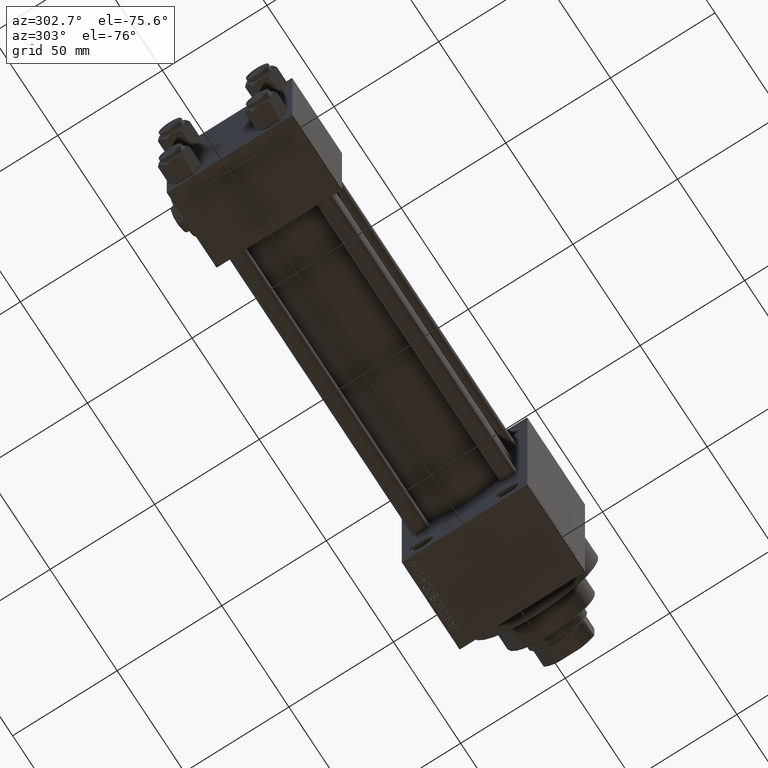
[diagram: clean part render]
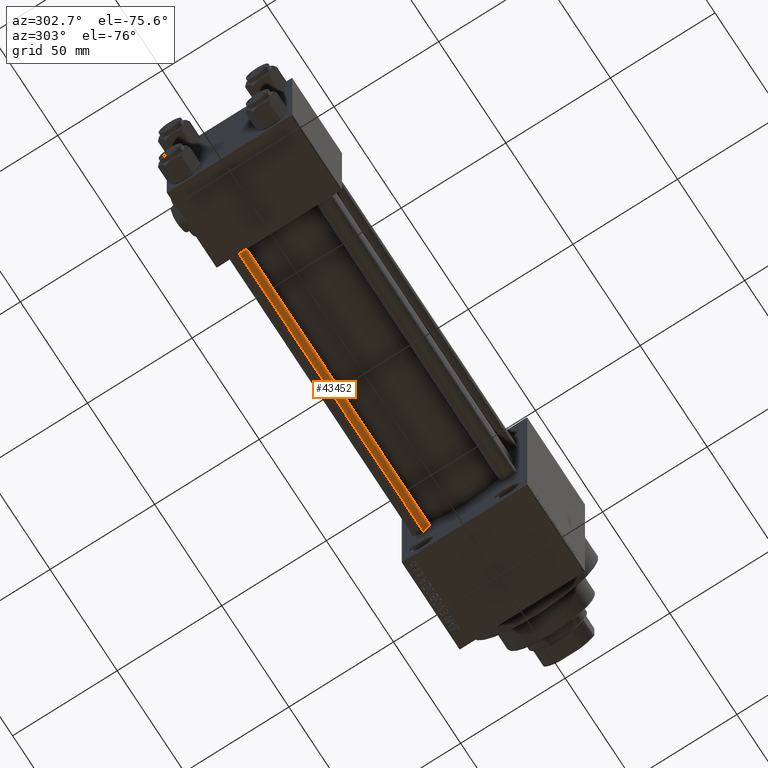
[diagram: same view with one face highlighted and labeled with its STEP entity id]
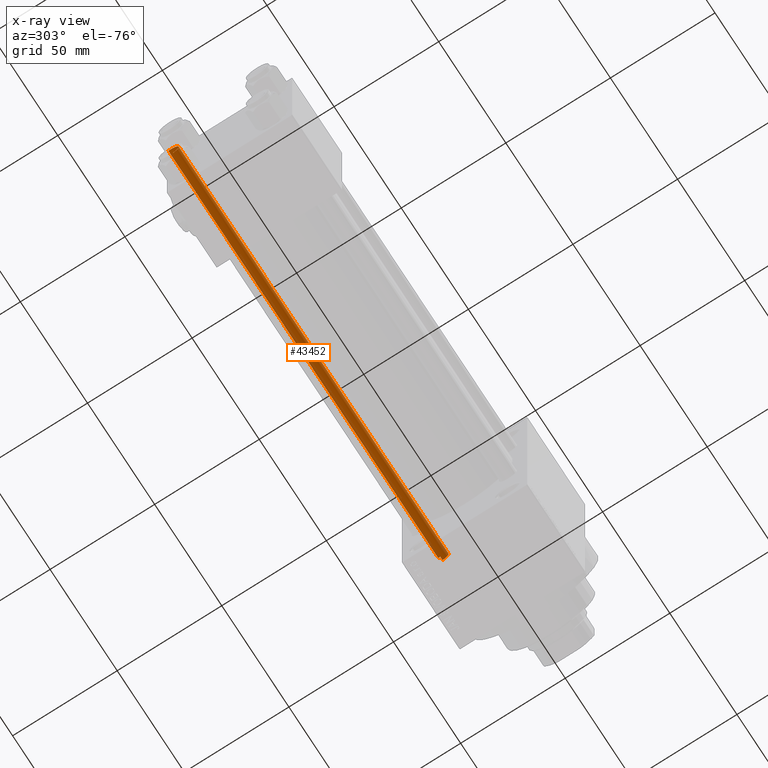
[diagram: x-ray of the same camera — body ghosted, the highlighted face saturated]
A machine part, auxiliary view. The second image highlights one B-rep face of the part: STEP entity #43452.
The next image is the same camera in x-ray: the body ghosted, the highlighted face saturated — about 2% of this face is hidden behind the body in this view.
In plain terms, the highlighted cylindrical surface (edge-blend (fillet) strip) has radius 4 mm, axis along (1, -0, 0).
Its self-contained STEP definition (entity closure, byte-faithful):
#5035 = EDGE_CURVE ( 'NONE', #46889, #38912, #5921, .T. ) ;
#5472 = CARTESIAN_POINT ( 'NONE',  ( -4.000000000000000000, 0.000000000000000000, 0.5000000000000004441 ) ) ;
#5921 = LINE ( 'NONE', #17620, #16634 ) ;
#7106 = VERTEX_POINT ( 'NONE', #5472 ) ;
#7474 = ORIENTED_EDGE ( 'NONE', *, *, #36543, .T. ) ;
#9608 = VERTEX_POINT ( 'NONE', #21591 ) ;
#10151 = CIRCLE ( 'NONE', #32423, 4.000000000000000000 ) ;
#10990 = CARTESIAN_POINT ( 'NONE',  ( 0.000000000000000000, 0.000000000000000000, 0.5000000000000004441 ) ) ;
#11949 = LINE ( 'NONE', #26161, #46271 ) ;
#16634 = VECTOR ( 'NONE', #40046, 1000.000000000000000 ) ;
#17620 = CARTESIAN_POINT ( 'NONE',  ( 4.000000000000000000, 4.898587196589412829E-16, 202.0000000000000000 ) ) ;
#17761 = DIRECTION ( 'NONE',  ( -1.000000000000000000, 0.000000000000000000, 0.000000000000000000 ) ) ;
#18006 = CARTESIAN_POINT ( 'NONE',  ( 0.000000000000000000, 0.000000000000000000, 202.0000000000000000 ) ) ;
#20993 = CYLINDRICAL_SURFACE ( 'NONE', #48913, 4.000000000000000000 ) ;
#21591 = CARTESIAN_POINT ( 'NONE',  ( -4.000000000000000000, 0.000000000000000000, 201.5000000000000000 ) ) ;
#21703 = DIRECTION ( 'NONE',  ( 1.000000000000000000, 0.000000000000000000, 0.000000000000000000 ) ) ;
#21734 = DIRECTION ( 'NONE',  ( 0.000000000000000000, 0.000000000000000000, -1.000000000000000000 ) ) ;
#21749 = ORIENTED_EDGE ( 'NONE', *, *, #5035, .F. ) ;
#21980 = CARTESIAN_POINT ( 'NONE',  ( 0.000000000000000000, 0.000000000000000000, 201.5000000000000000 ) ) ;
#22029 = EDGE_CURVE ( 'NONE', #46889, #9608, #10151, .T. ) ;
#24743 = FACE_OUTER_BOUND ( 'NONE', #33723, .T. ) ;
#26038 = AXIS2_PLACEMENT_3D ( 'NONE', #10990, #37648, #21703 ) ;
#26161 = CARTESIAN_POINT ( 'NONE',  ( -4.000000000000000000, 0.000000000000000000, 202.0000000000000000 ) ) ;
#29085 = CARTESIAN_POINT ( 'NONE',  ( 4.000000000000000000, 4.898587196589412829E-16, 0.5000000000000004441 ) ) ;
#29926 = ORIENTED_EDGE ( 'NONE', *, *, #49115, .T. ) ;
#30143 = ORIENTED_EDGE ( 'NONE', *, *, #22029, .T. ) ;
#32233 = DIRECTION ( 'NONE',  ( -0.000000000000000000, -0.000000000000000000, -1.000000000000000000 ) ) ;
#32423 = AXIS2_PLACEMENT_3D ( 'NONE', #21980, #21734, #36949 ) ;
#33199 = CIRCLE ( 'NONE', #26038, 4.000000000000000000 ) ;
#33723 = EDGE_LOOP ( 'NONE', ( #21749, #30143, #7474, #29926 ) ) ;
#36543 = EDGE_CURVE ( 'NONE', #9608, #7106, #11949, .T. ) ;
#36949 = DIRECTION ( 'NONE',  ( 1.000000000000000000, 0.000000000000000000, 0.000000000000000000 ) ) ;
#37648 = DIRECTION ( 'NONE',  ( -0.000000000000000000, -0.000000000000000000, 1.000000000000000000 ) ) ;
#37871 = DIRECTION ( 'NONE',  ( -0.000000000000000000, -0.000000000000000000, -1.000000000000000000 ) ) ;
#38912 = VERTEX_POINT ( 'NONE', #29085 ) ;
#40046 = DIRECTION ( 'NONE',  ( -0.000000000000000000, -0.000000000000000000, -1.000000000000000000 ) ) ;
#43452 = ADVANCED_FACE ( 'NONE', ( #24743 ), #20993, .T. ) ;
#43929 = CARTESIAN_POINT ( 'NONE',  ( 4.000000000000000000, 4.898587196589412829E-16, 201.5000000000000000 ) ) ;
#46271 = VECTOR ( 'NONE', #37871, 1000.000000000000000 ) ;
#46889 = VERTEX_POINT ( 'NONE', #43929 ) ;
#48913 = AXIS2_PLACEMENT_3D ( 'NONE', #18006, #32233, #17761 ) ;
#49115 = EDGE_CURVE ( 'NONE', #7106, #38912, #33199, .T. ) ;